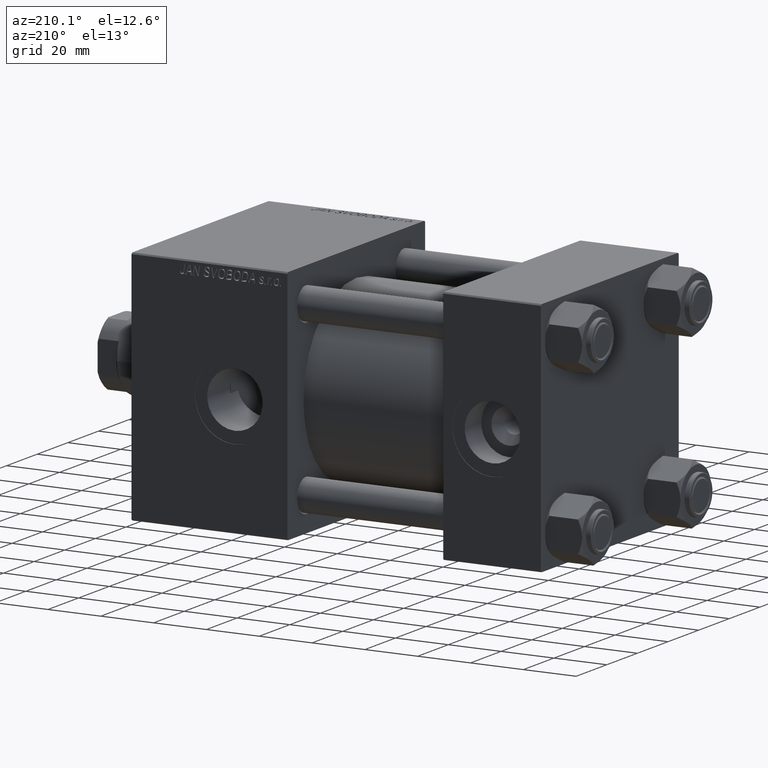
[diagram: clean part render]
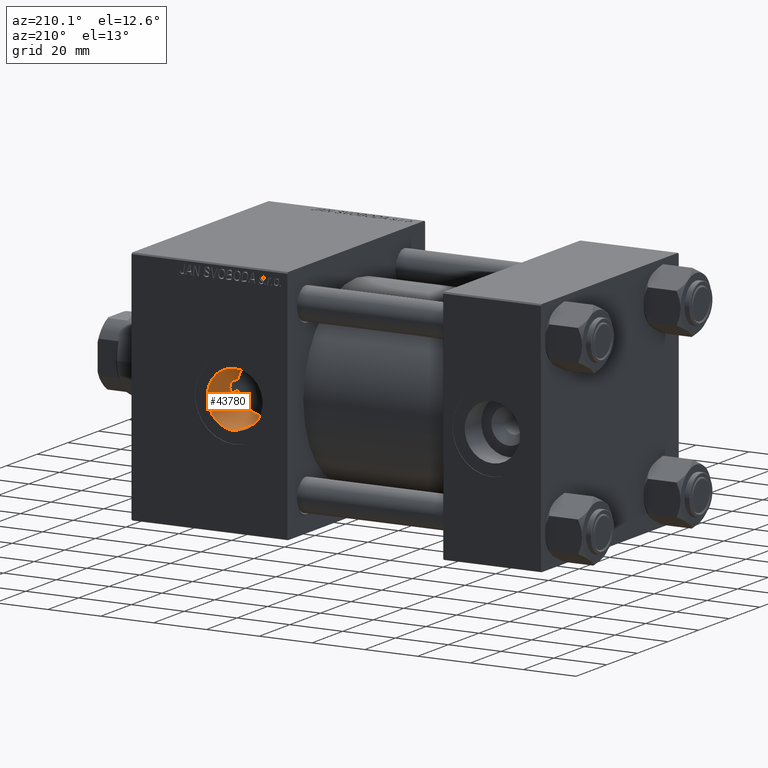
[diagram: same view with one face highlighted and labeled with its STEP entity id]
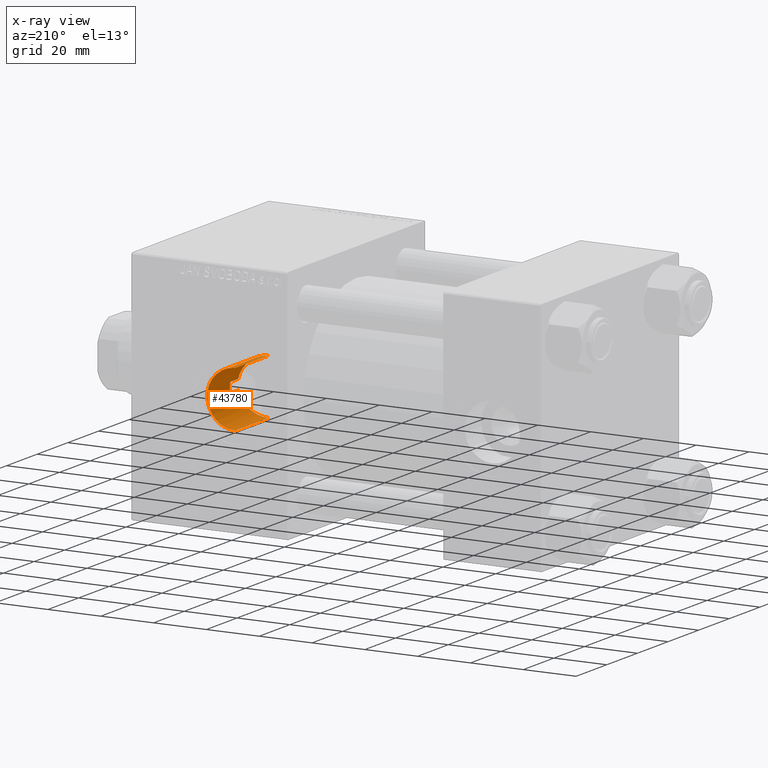
[diagram: x-ray of the same camera — body ghosted, the highlighted face saturated]
A machine part, auxiliary view. The second image highlights one B-rep face of the part: STEP entity #43780.
The next image is the same camera in x-ray: the body ghosted, the highlighted face saturated — about 0% of this face is hidden behind the body in this view.
In plain terms, the highlighted cylindrical surface (edge-blend (fillet) strip) has radius 10.48 mm, axis along (0, 1, 0).
Its self-contained STEP definition (entity closure, byte-faithful):
#925 = VERTEX_POINT ( 'NONE', #12930 ) ;
#1055 = CARTESIAN_POINT ( 'NONE',  ( 117.2322774918956441, 22.72288875680884601, 10.42516416521383427 ) ) ;
#1307 = CARTESIAN_POINT ( 'NONE',  ( 125.3365885758776841, 24.54097123568318395, 4.798722814978532369 ) ) ;
#1431 = DIRECTION ( 'NONE',  ( -0.000000000000000000, 1.000000000000000000, -0.000000000000000000 ) ) ;
#1807 = CARTESIAN_POINT ( 'NONE',  ( 124.7194189641794111, 24.31287004917997407, 5.845627410065805662 ) ) ;
#1901 = VERTEX_POINT ( 'NONE', #19792 ) ;
#2319 = CARTESIAN_POINT ( 'NONE',  ( 126.0213090755694054, 24.81044651116619804, 3.125282801040376146 ) ) ;
#2444 = CARTESIAN_POINT ( 'NONE',  ( 115.9999999999999574, 22.69734786269092908, -10.48000000000001286 ) ) ;
#4113 = EDGE_CURVE ( 'NONE', #5424, #18167, #10920, .T. ) ;
#5424 = VERTEX_POINT ( 'NONE', #7851 ) ;
#5957 = CARTESIAN_POINT ( 'NONE',  ( 126.2999999999999972, 29.93759509379468753, -1.934011375354396822 ) ) ;
#6254 = CARTESIAN_POINT ( 'NONE',  ( 116.3076896963080600, 22.69734786269091842, -10.48000000000000043 ) ) ;
#6873 = EDGE_CURVE ( 'NONE', #925, #5424, #41657, .T. ) ;
#7851 = CARTESIAN_POINT ( 'NONE',  ( 116.0000000000000000, 44.80000000000001847, 10.48000000000000043 ) ) ;
#7879 = ORIENTED_EDGE ( 'NONE', *, *, #8537, .T. ) ;
#8537 = EDGE_CURVE ( 'NONE', #23122, #27419, #40667, .T. ) ;
#8619 = VECTOR ( 'NONE', #1431, 1000.000000000000000 ) ;
#8745 = ORIENTED_EDGE ( 'NONE', *, *, #4113, .T. ) ;
#9571 = CARTESIAN_POINT ( 'NONE',  ( 122.9332077102123861, 23.73162063118217091, -7.864568902139661866 ) ) ;
#9706 = CARTESIAN_POINT ( 'NONE',  ( 120.7083723491581395, 23.17899486745389837, 9.367678011353774536 ) ) ;
#9791 = CARTESIAN_POINT ( 'NONE',  ( 126.5389514563106985, 30.02075827440025080, 1.301042606982605321E-15 ) ) ;
#9832 = CARTESIAN_POINT ( 'NONE',  ( 120.1555850499988480, 23.07305854210197893, -9.625647614747046887 ) ) ;
#10080 = CARTESIAN_POINT ( 'NONE',  ( 125.3223998280050751, 24.53695619936533490, -4.797360000515654477 ) ) ;
#10332 = CARTESIAN_POINT ( 'NONE',  ( 126.0210743422585153, 24.81034816119845843, -3.126242148224074313 ) ) ;
#10920 = CIRCLE ( 'NONE', #29660, 10.48000000000000043 ) ;
#12203 = CARTESIAN_POINT ( 'NONE',  ( 126.2999999999999972, 29.93759509379468753, -1.934011375354396822 ) ) ;
#12207 = DIRECTION ( 'NONE',  ( 0.000000000000000000, 1.000000000000000000, 0.000000000000000000 ) ) ;
#12527 = CARTESIAN_POINT ( 'NONE',  ( 116.6110601447643660, 22.69734786269092197, 10.48000000000000220 ) ) ;
#12773 = CARTESIAN_POINT ( 'NONE',  ( 121.7549989371403285, 23.41010728859861345, 8.778972046462339307 ) ) ;
#12930 = CARTESIAN_POINT ( 'NONE',  ( 116.0000000000000000, 22.69734786269092197, 10.48000000000000043 ) ) ;
#13629 = DIRECTION ( 'NONE',  ( -0.000000000000000000, 1.000000000000000000, -0.000000000000000000 ) ) ;
#13653 = CARTESIAN_POINT ( 'NONE',  ( 125.5834545747850939, 24.63732295853899146, -4.251964245001079945 ) ) ;
#14153 = CARTESIAN_POINT ( 'NONE',  ( 116.6184503203334799, 22.70371650711279443, -10.46623830854440662 ) ) ;
#16631 = DIRECTION ( 'NONE',  ( -0.000000000000000000, 1.000000000000000000, -0.000000000000000000 ) ) ;
#17359 = CARTESIAN_POINT ( 'NONE',  ( 123.5987668480130850, 23.93278328930205845, 7.241875511745254457 ) ) ;
#17434 = CARTESIAN_POINT ( 'NONE',  ( 126.4210485436893237, 29.97924172559974565, 1.289340916902931067 ) ) ;
#17988 = CARTESIAN_POINT ( 'NONE',  ( 120.7040979107195398, 23.17812935793410389, -9.369815470830964443 ) ) ;
#18167 = VERTEX_POINT ( 'NONE', #30399 ) ;
#19414 = ORIENTED_EDGE ( 'NONE', *, *, #20405, .F. ) ;
#19505 = DIRECTION ( 'NONE',  ( -0.000000000000000000, 1.000000000000000000, -0.000000000000000000 ) ) ;
#19783 = ORIENTED_EDGE ( 'NONE', *, *, #27693, .T. ) ;
#19792 = CARTESIAN_POINT ( 'NONE',  ( 126.2999999999999972, 29.93759509379468753, 1.934011375354396822 ) ) ;
#19881 = EDGE_CURVE ( 'NONE', #23122, #32241, #40723, .T. ) ;
#20405 = EDGE_CURVE ( 'NONE', #925, #27097, #42528, .T. ) ;
#20684 = CARTESIAN_POINT ( 'NONE',  ( 122.2463736098318776, 23.53697641551141473, 8.436658862434526895 ) ) ;
#21020 = EDGE_LOOP ( 'NONE', ( #43174, #31817, #7879, #27410, #19783, #19414, #39118, #8745 ) ) ;
#21317 = CARTESIAN_POINT ( 'NONE',  ( 126.2999999999999972, -29.64191626734007201, -1.934011375354396822 ) ) ;
#21442 = CARTESIAN_POINT ( 'NONE',  ( 124.3712186421444983, 24.18913309560349134, 6.333144320437626540 ) ) ;
#21803 = CARTESIAN_POINT ( 'NONE',  ( 117.2299806015979158, 22.72859684883632525, -10.41209742797558846 ) ) ;
#21898 = VECTOR ( 'NONE', #19505, 1000.000000000000000 ) ;
#22513 = EDGE_CURVE ( 'NONE', #1901, #27419, #35710, .T. ) ;
#23122 = VERTEX_POINT ( 'NONE', #45342 ) ;
#23317 = LINE ( 'NONE', #27136, #21898 ) ;
#24009 = VECTOR ( 'NONE', #13629, 1000.000000000000000 ) ;
#24272 = CYLINDRICAL_SURFACE ( 'NONE', #41718, 10.48000000000000043 ) ;
#25113 = CARTESIAN_POINT ( 'NONE',  ( 120.9708057090665250, 23.23390972285156764, -9.230989781872768418 ) ) ;
#25257 = CARTESIAN_POINT ( 'NONE',  ( 120.9753809948897185, 23.23488527341189425, 9.228541309191479414 ) ) ;
#25373 = CARTESIAN_POINT ( 'NONE',  ( 119.0142847940010711, 22.88965506391802762, -10.05559815508270027 ) ) ;
#25606 = CARTESIAN_POINT ( 'NONE',  ( 116.0000000000000000, -29.64191626734007201, 10.48000000000000043 ) ) ;
#25628 = CARTESIAN_POINT ( 'NONE',  ( 124.7165790327873367, 24.31185381307014381, -5.849757798485176963 ) ) ;
#27097 = VERTEX_POINT ( 'NONE', #44837 ) ;
#27136 = CARTESIAN_POINT ( 'NONE',  ( 116.0000000000000000, -29.64191626734007201, -10.48000000000000043 ) ) ;
#27410 = ORIENTED_EDGE ( 'NONE', *, *, #22513, .F. ) ;
#27419 = VERTEX_POINT ( 'NONE', #12203 ) ;
#27686 = DIRECTION ( 'NONE',  ( 0.000000000000000000, -1.000000000000000000, 0.000000000000000000 ) ) ;
#27693 = EDGE_CURVE ( 'NONE', #1901, #27097, #47318, .T. ) ;
#28069 = CARTESIAN_POINT ( 'NONE',  ( 118.4335631959205841, 22.81958359536422520, 10.21177388410809428 ) ) ;
#28316 = CARTESIAN_POINT ( 'NONE',  ( 126.1860905014694225, 24.87800796049817720, 2.540661289525331767 ) ) ;
#28832 = CARTESIAN_POINT ( 'NONE',  ( 125.5967018876780799, 24.64200291405538579, 4.254096972755111672 ) ) ;
#28945 = CARTESIAN_POINT ( 'NONE',  ( 124.3682082231354968, 24.18807830728736263, -6.337214579021599015 ) ) ;
#29107 = FACE_OUTER_BOUND ( 'NONE', #21020, .T. ) ;
#29157 = CARTESIAN_POINT ( 'NONE',  ( 126.2999999999999972, 29.93759509379468753, 1.934011375354396822 ) ) ;
#29196 = CARTESIAN_POINT ( 'NONE',  ( 119.8722702370925077, 23.02355914754543420, -9.743129116453802752 ) ) ;
#29335 = CARTESIAN_POINT ( 'NONE',  ( 119.8763894940811383, 23.02425611976455855, 9.741482359767402954 ) ) ;
#29660 = AXIS2_PLACEMENT_3D ( 'NONE', #35645, #12207, #39466 ) ;
#30399 = CARTESIAN_POINT ( 'NONE',  ( 116.0000000000000000, 44.80000000000001847, -10.48000000000000043 ) ) ;
#31043 = EDGE_CURVE ( 'NONE', #32241, #18167, #23317, .T. ) ;
#31817 = ORIENTED_EDGE ( 'NONE', *, *, #19881, .F. ) ;
#32241 = VERTEX_POINT ( 'NONE', #42133 ) ;
#32494 = CARTESIAN_POINT ( 'NONE',  ( 125.1791453405796091, 24.48276497113430494, -5.066132143998678394 ) ) ;
#32751 = CARTESIAN_POINT ( 'NONE',  ( 123.5841984343152546, 23.93007535684158782, -7.238810305119474542 ) ) ;
#32891 = CARTESIAN_POINT ( 'NONE',  ( 120.1594229704399623, 23.07374768723452974, 9.623999275545195076 ) ) ;
#33144 = CARTESIAN_POINT ( 'NONE',  ( 119.0193213176865754, 22.89033417524105474, 10.05405366419395463 ) ) ;
#33258 = CARTESIAN_POINT ( 'NONE',  ( 123.1575839127999501, 23.79830767432465777, -7.660902887767268687 ) ) ;
#35582 = CARTESIAN_POINT ( 'NONE',  ( 126.2999999999999972, -29.64191626734007201, 1.934011375354396822 ) ) ;
#35645 = CARTESIAN_POINT ( 'NONE',  ( 116.0000000000000000, 44.80000000000001847, 0.000000000000000000 ) ) ;
#35710 = B_SPLINE_CURVE_WITH_KNOTS ( 'NONE', 3,
 ( #29157, #17434, #9791, #40871, #5957 ),
 .UNSPECIFIED., .F., .F.,
 ( 4, 1, 4 ),
 ( 0.000000000000000000, 0.001934011375354397107, 0.003868022750708794213 ),
 .UNSPECIFIED. ) ;
#36828 = CARTESIAN_POINT ( 'NONE',  ( 126.2999999999999972, 24.92507973909010133, -1.934011375354396822 ) ) ;
#37334 = CARTESIAN_POINT ( 'NONE',  ( 126.1860373835922644, 24.87798601015176203, -2.540944180381934370 ) ) ;
#39111 = VECTOR ( 'NONE', #27686, 1000.000000000000000 ) ;
#39118 = ORIENTED_EDGE ( 'NONE', *, *, #6873, .T. ) ;
#39466 = DIRECTION ( 'NONE',  ( 0.000000000000000000, 0.000000000000000000, 1.000000000000000000 ) ) ;
#40059 = CARTESIAN_POINT ( 'NONE',  ( 116.0000000000000000, -29.64191626734007201, 0.000000000000000000 ) ) ;
#40667 = LINE ( 'NONE', #21317, #8619 ) ;
#40723 = B_SPLINE_CURVE_WITH_KNOTS ( 'NONE', 3,
 ( #36828, #37334, #10332, #45252, #13653, #10080, #32494, #25628, #28945, #44488, #32751, #33258, #9571, #41165, #48823, #25113, #17988, #9832, #29196, #25373, #44738, #40908, #21803, #14153, #6254, #2444 ),
 .UNSPECIFIED., .F., .F.,
 ( 4, 2, 2, 2, 2, 2, 2, 2, 2, 2, 2, 2, 4 ),
 ( 0.000000000000000000, 0.001829777386401831201, 0.002744666079602731731, 0.003659554772803632477, 0.005489332159205429634, 0.006404220852406315202, 0.007319109545607200770, 0.009148886932009006601, 0.01006377562520990865, 0.01097866431841081070, 0.01280844170481261306, 0.01372333039801351511, 0.01463821909121441542 ),
 .UNSPECIFIED. ) ;
#40871 = CARTESIAN_POINT ( 'NONE',  ( 126.4210485436893521, 29.97924172559974565, -1.289340916902933509 ) ) ;
#40908 = CARTESIAN_POINT ( 'NONE',  ( 117.5323102098026169, 22.74705995731304142, -10.37182038327443223 ) ) ;
#41165 = CARTESIAN_POINT ( 'NONE',  ( 122.2397153213852619, 23.53522980150266619, -8.441445692881854868 ) ) ;
#41657 = LINE ( 'NONE', #25606, #24009 ) ;
#41718 = AXIS2_PLACEMENT_3D ( 'NONE', #40059, #16631, #44644 ) ;
#42133 = CARTESIAN_POINT ( 'NONE',  ( 115.9999999999999574, 22.69734786269092908, -10.48000000000001286 ) ) ;
#42528 = B_SPLINE_CURVE_WITH_KNOTS ( 'NONE', 3,
 ( #43611, #12527, #1055, #28069, #33144, #29335, #32891, #9706, #25257, #12773, #20684, #48196, #17359, #21442, #1807, #1307, #28832, #2319, #28316, #44621 ),
 .UNSPECIFIED., .F., .F.,
 ( 4, 2, 2, 2, 2, 2, 2, 2, 2, 4 ),
 ( 0.04777555843500053134, 0.04960278494382207304, 0.05143001145264361473, 0.05234362470705436476, 0.05325723796146511479, 0.05508446447028662180, 0.05691169097910812186, 0.05873891748792962192, 0.06056614399675112892, 0.06239337050557262898 ),
 .UNSPECIFIED. ) ;
#43174 = ORIENTED_EDGE ( 'NONE', *, *, #31043, .F. ) ;
#43611 = CARTESIAN_POINT ( 'NONE',  ( 116.0000000000000000, 22.69734786269092197, 10.48000000000000043 ) ) ;
#43780 = ADVANCED_FACE ( 'NONE', ( #29107 ), #24272, .F. ) ;
#44488 = CARTESIAN_POINT ( 'NONE',  ( 123.7875165981256060, 23.99545103971812310, -7.019557294124578739 ) ) ;
#44621 = CARTESIAN_POINT ( 'NONE',  ( 126.2999999999999972, 24.92507973909010133, 1.934011375354396822 ) ) ;
#44644 = DIRECTION ( 'NONE',  ( 0.000000000000000000, 0.000000000000000000, 1.000000000000000000 ) ) ;
#44738 = CARTESIAN_POINT ( 'NONE',  ( 118.4293865525149272, 22.81920611046001923, -10.21261041782898538 ) ) ;
#44837 = CARTESIAN_POINT ( 'NONE',  ( 126.2999999999999972, 24.92507973909010133, 1.934011375354396822 ) ) ;
#45252 = CARTESIAN_POINT ( 'NONE',  ( 125.7018873513318340, 24.68373309296297435, -3.974293906805115739 ) ) ;
#45342 = CARTESIAN_POINT ( 'NONE',  ( 126.2999999999999972, 24.92507973909010133, -1.934011375354396822 ) ) ;
#47318 = LINE ( 'NONE', #35582, #39111 ) ;
#48196 = CARTESIAN_POINT ( 'NONE',  ( 123.1732750394716334, 23.79974685375124821, 7.664106030242090029 ) ) ;
#48823 = CARTESIAN_POINT ( 'NONE',  ( 121.7493281379708634, 23.40872872428952789, -8.782616521472810689 ) ) ;